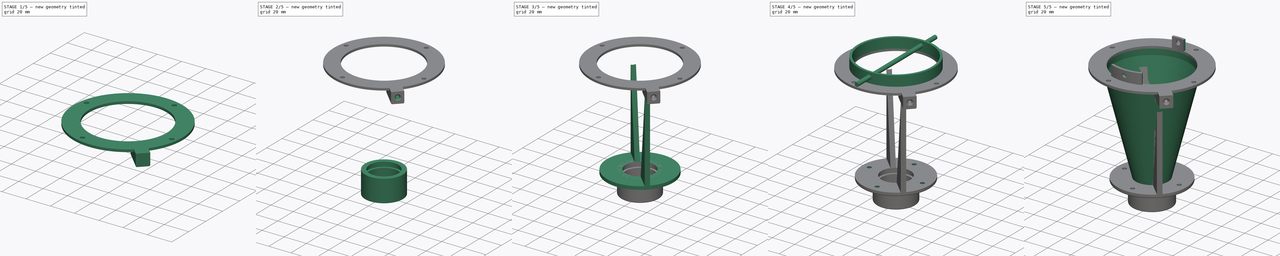
[diagram: build sequence overview — one tinted view per stage of 5, left to right]
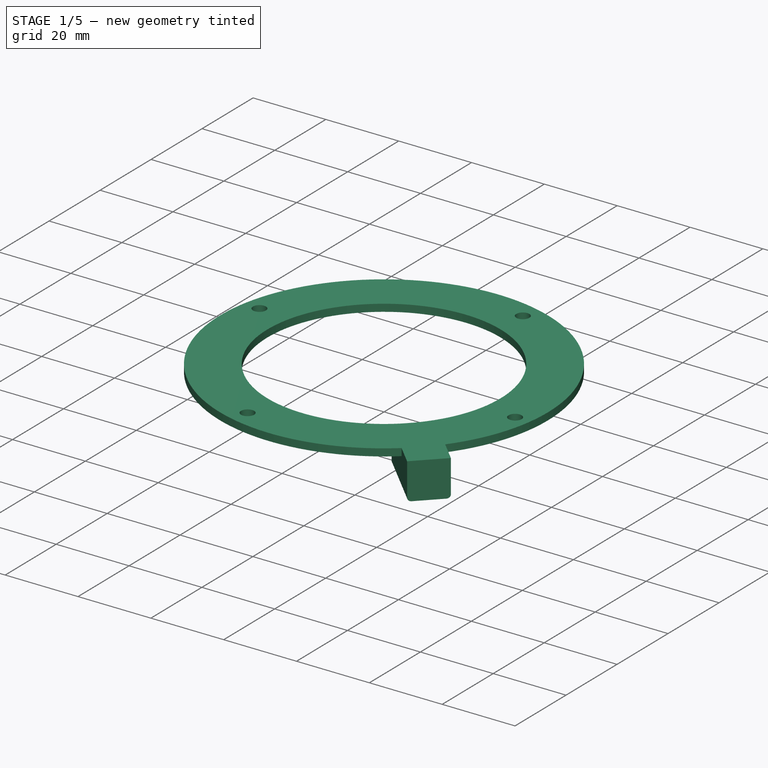
[diagram: stage 1 of 5 — iso view after this stage's code; geometry added in this stage tinted green]
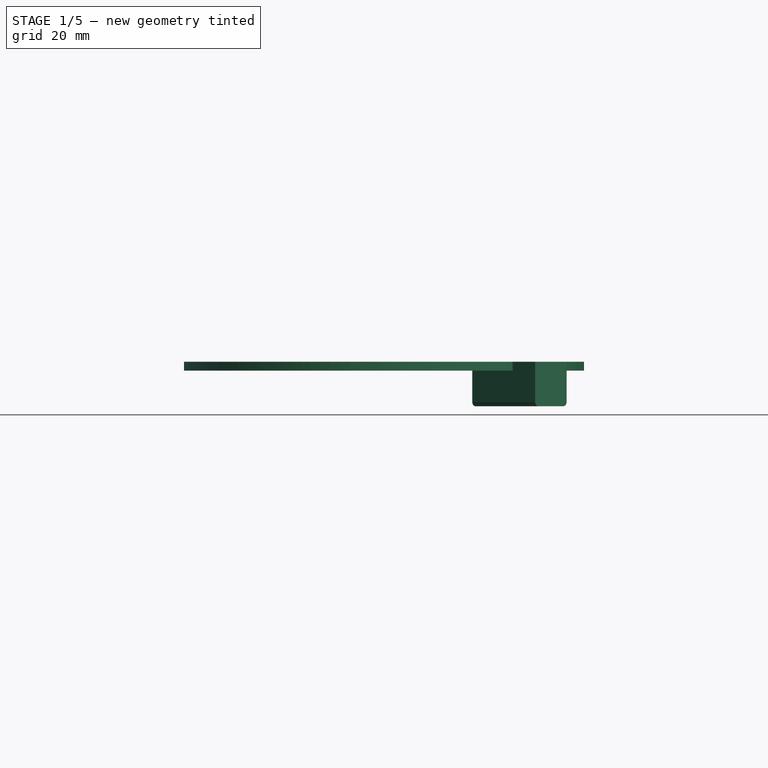
[diagram: stage 1 of 5 — front view after this stage's code; geometry added in this stage tinted green]
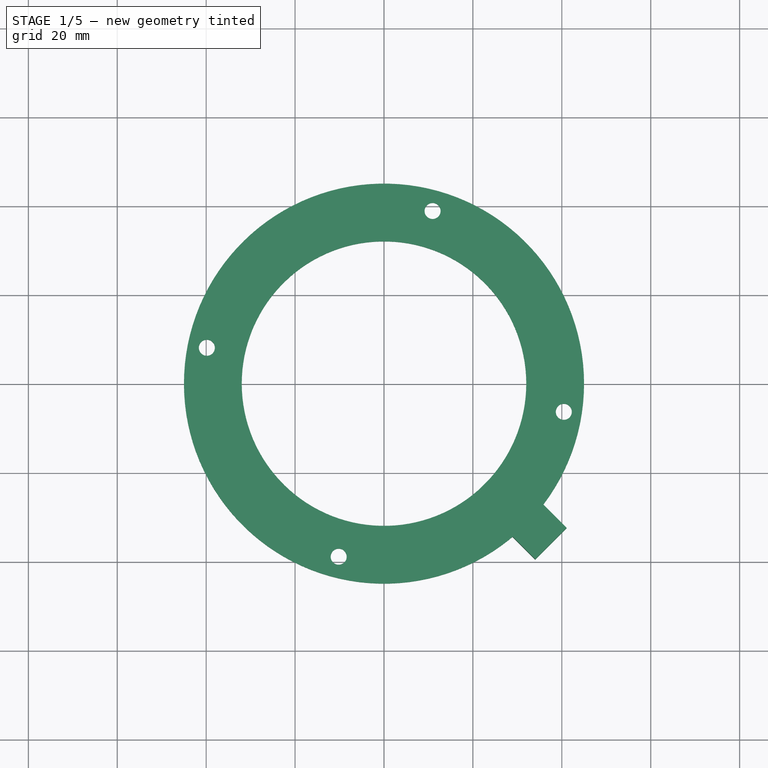
[diagram: stage 1 of 5 — top view after this stage's code; geometry added in this stage tinted green]
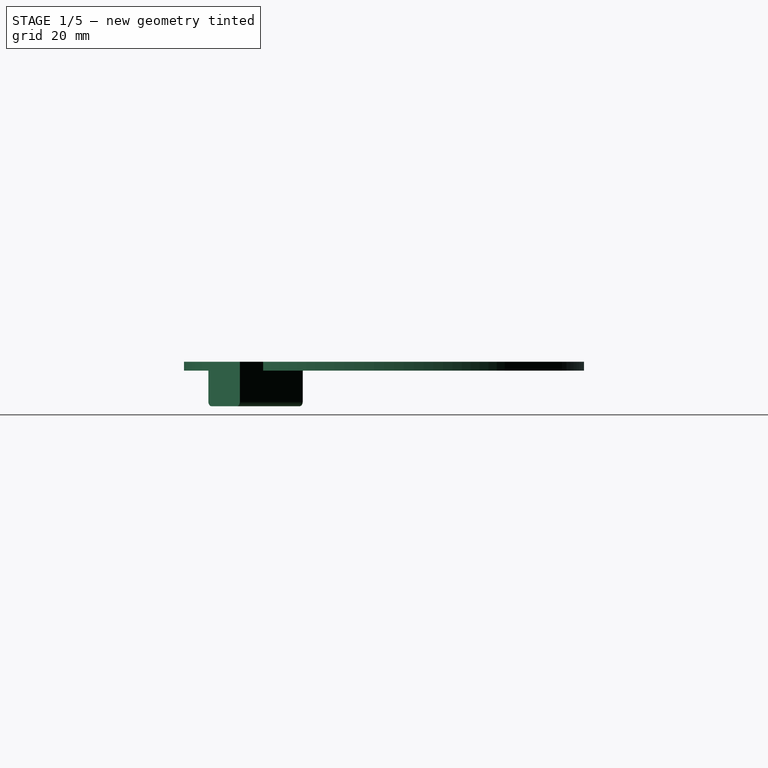
[diagram: stage 1 of 5 — right view after this stage's code; geometry added in this stage tinted green]
FCSTD DOCUMENT  (FreeCAD 0.16R6706 (Git))
Label: fan_funnel_2_hose_v2
License: All rights reserved
LicenseURL: http://en.wikipedia.org/wiki/All_rights_reserved
objects: Part::Cylinder×11, Part::Cut×9, Part::Fillet×5, Sketcher::SketchObject×4, PartDesign::Pocket×4, Part::Cone×2, Part::Box×2, PartDesign::Chamfer×1
note: 42 computed .brp shape members not serialized (recipe doc carries the construction recipe); baked Part::Feature solids carry a one-line shape summary decoded from their .brp

FEATURE [Part::Box] Box001  label="Kub001"
  Height = 10
  Length = 10
  Placement = pos=(34,-39.5,77) rot=(0,0,1;0.785398rad)
  Width = 20
FEATURE [Part::Fillet] Fillet003
  Base = -> Box001
  Edges = 1 edges r=1: [Edge8]
FEATURE [Part::Fillet] Fillet004
  Base = -> Fillet003
  Edges = 1 edges r=1: [Edge15]
FEATURE [Part::Cylinder] Cylinder009
  Angle = 360
  Height = 2
  Placement = pos=(0,0,85) rot=(0,0,1;0rad)
  Radius = 32
FEATURE [Part::Cylinder] Cylinder010
  Angle = 360
  Height = 2
  Placement = pos=(0,0,85) rot=(0,0,1;0rad)
  Radius = 45
FEATURE [Part::Cut] Cut008
  Base = -> Cylinder010
  Tool = -> Cylinder009
FEATURE [Sketcher::SketchObject] Sketch005
  Placement = pos=(0,0,87) rot=(0,0,1;0rad)
  Support = -> Cut008 [Face2]
  sketch-geometry (4):
    g0: Circle CenterX=10.9286 CenterY=38.84 CenterZ=0 NormalX=0 NormalY=0 NormalZ=1 Radius=1.8
    g1: Circle CenterX=40.4445 CenterY=-6.34323 CenterZ=0 NormalX=0 NormalY=0 NormalZ=1 Radius=1.8
    g2: Circle CenterX=-10.1943 CenterY=-38.9367 CenterZ=0 NormalX=0 NormalY=0 NormalZ=1 Radius=1.8
    g3: Circle CenterX=-39.8501 CenterY=8.06504 CenterZ=0 NormalX=0 NormalY=0 NormalZ=1 Radius=1.8
  constraints (4):
    c: Radius(g0) = 1.8
    c: Equal(g0,g1)
    c: Equal(g0,g2)
    c: Equal(g0,g3)
FEATURE [PartDesign::Pocket] Pocket003
  Length = 5
  Sketch = -> Sketch005
  Type = 0
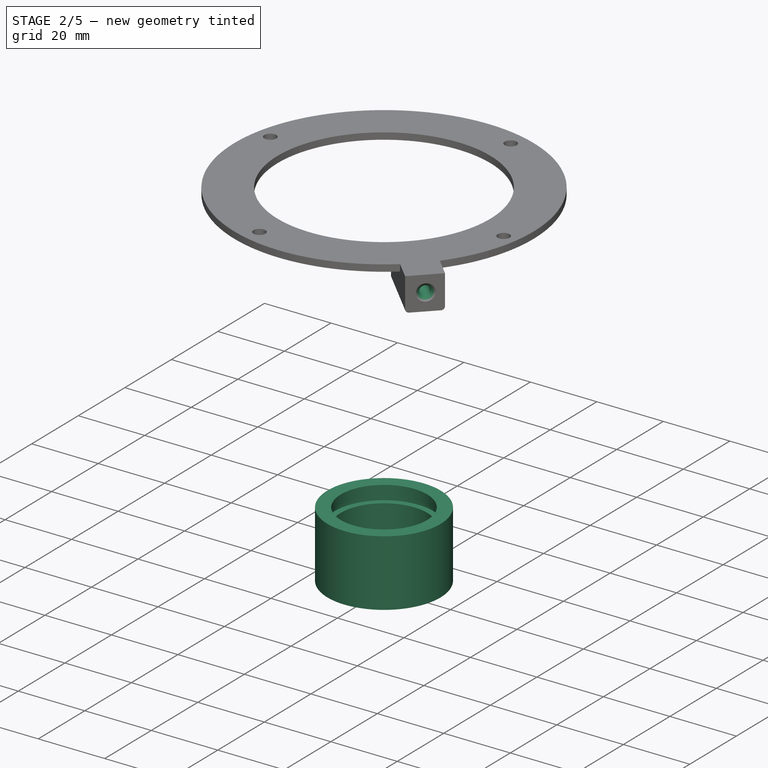
[diagram: stage 2 of 5 — iso view after this stage's code; geometry added in this stage tinted green]
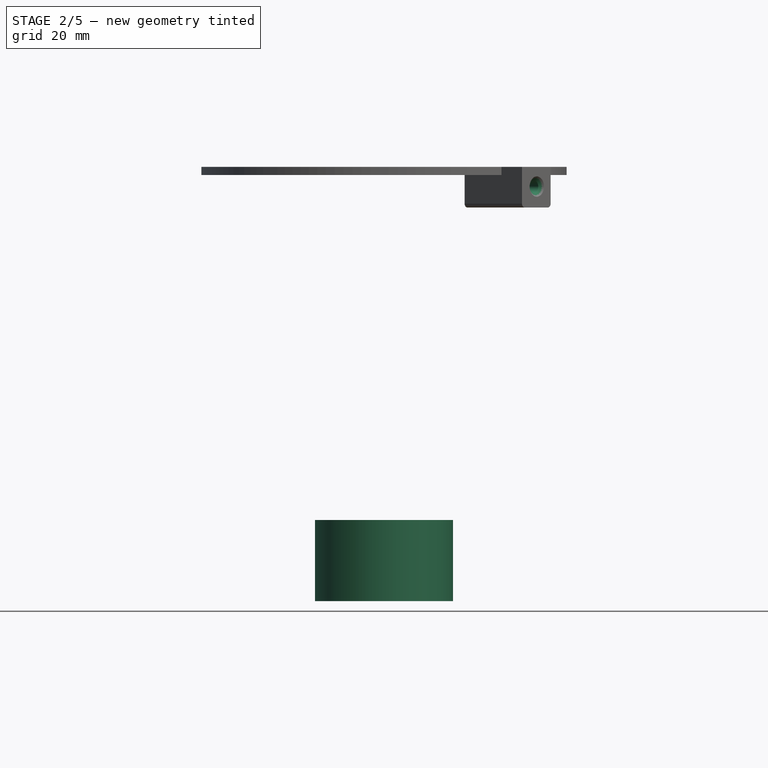
[diagram: stage 2 of 5 — front view after this stage's code; geometry added in this stage tinted green]
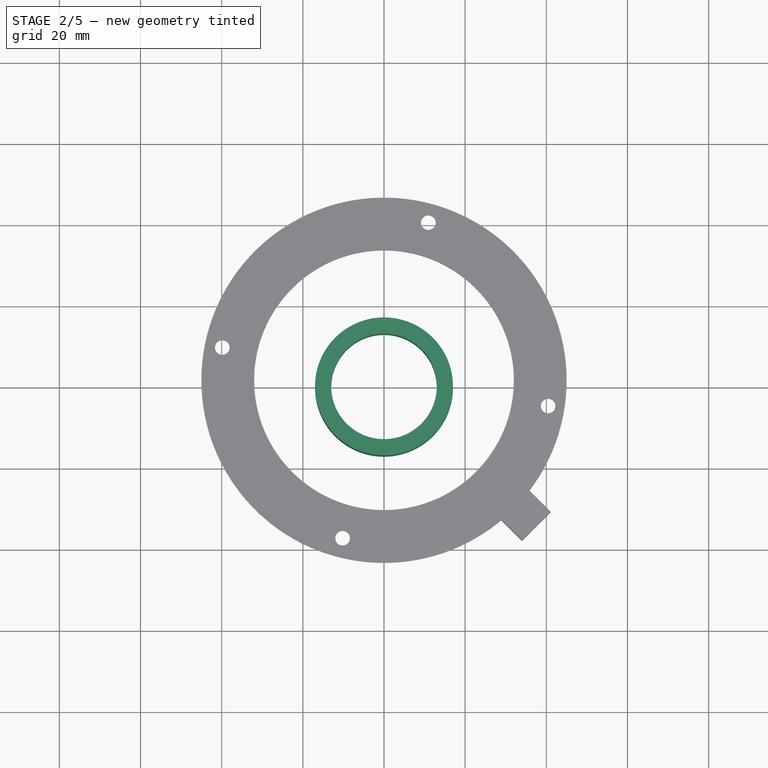
[diagram: stage 2 of 5 — top view after this stage's code; geometry added in this stage tinted green]
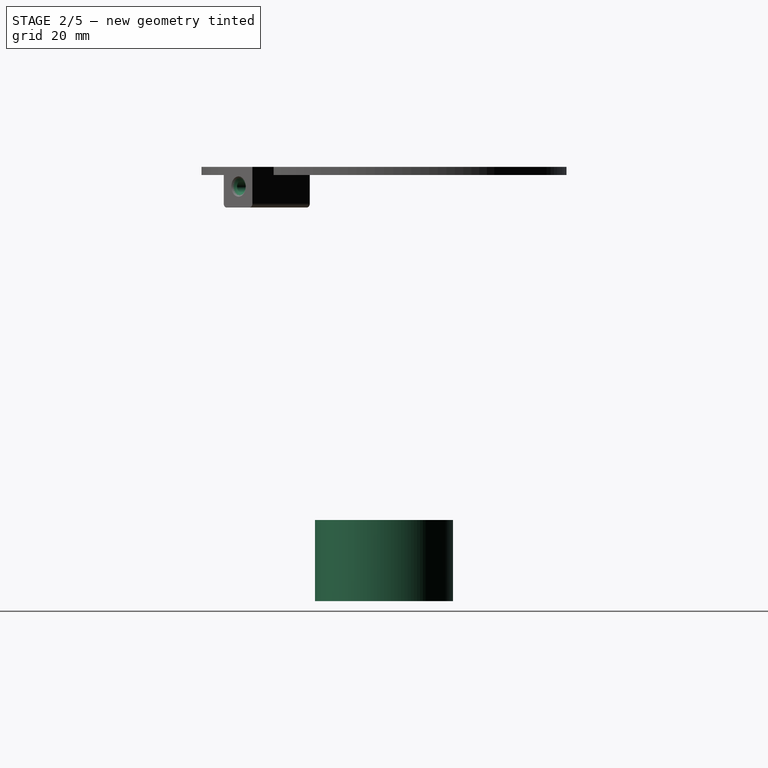
[diagram: stage 2 of 5 — right view after this stage's code; geometry added in this stage tinted green]
FEATURE [Part::Cylinder] Cylinder
  Angle = 360
  Height = 20
  Placement = pos=(0,0,-20) rot=(0,0,1;0rad)
  Radius = 17
FEATURE [Part::Cylinder] Cylinder001
  Angle = 360
  Height = 25
  Placement = pos=(0,0,-20) rot=(0,0,1;0rad)
  Radius = 13
FEATURE [Part::Cut] Cut001
  Base = -> Cylinder
  Tool = -> Cylinder001
FEATURE [Part::Cylinder] Cylinder007
  Angle = 360
  Height = 2
  Placement = pos=(0,0,-5) rot=(0,0,1;0rad)
  Radius = 14.8
FEATURE [Part::Cut] Cut005
  Base = -> Cut001
  Tool = -> Cylinder007
FEATURE [Sketcher::SketchObject] Sketch004
  Placement = pos=(36.75,-36.75,0) rot=(0.862856,0.357407,0.357407;1.71777rad)
  Support = -> Fillet004 [Face1]
  sketch-geometry (1):
    g0: Circle CenterX=1.27757 CenterY=82.1553 CenterZ=0 NormalX=0 NormalY=0 NormalZ=1 Radius=1.5
  constraints (1):
    c: Radius(g0) = 1.5
FEATURE [PartDesign::Pocket] Pocket002
  Length = 10
  Sketch = -> Sketch004
  Type = 0
FEATURE [PartDesign::Chamfer] Chamfer
  Base = -> Pocket002 [Edge7]
  Size = 1
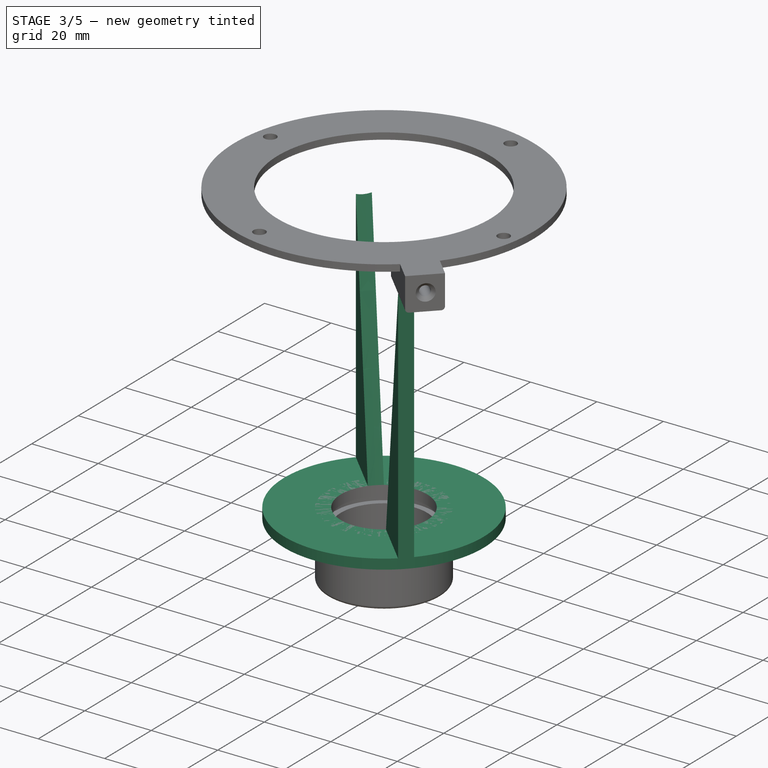
[diagram: stage 3 of 5 — iso view after this stage's code; geometry added in this stage tinted green]
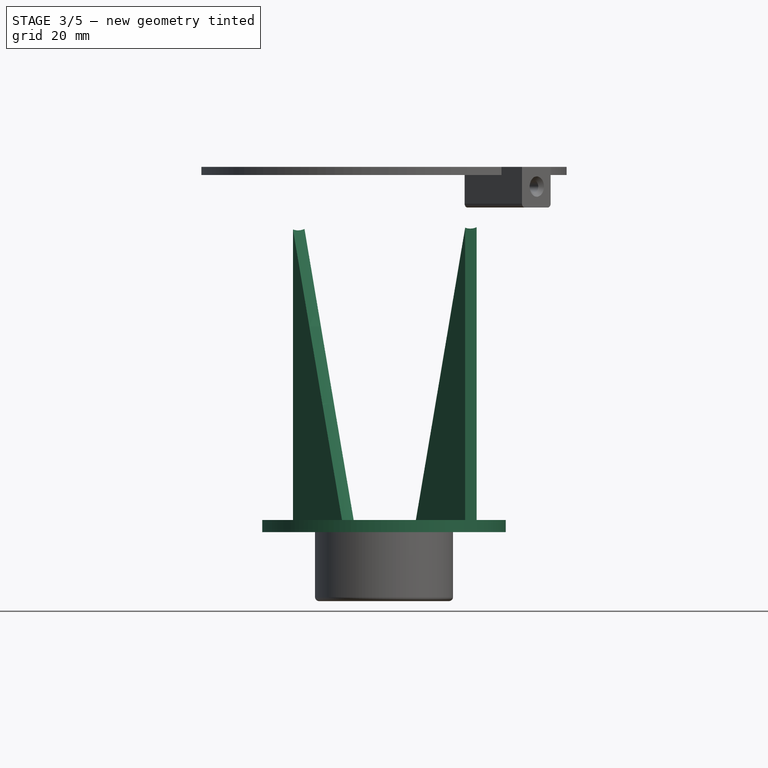
[diagram: stage 3 of 5 — front view after this stage's code; geometry added in this stage tinted green]
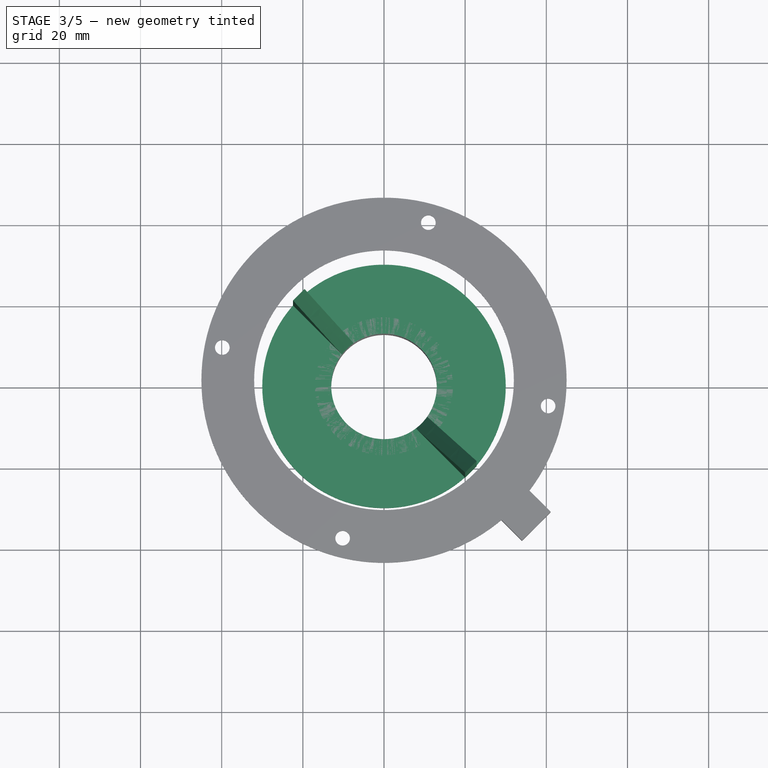
[diagram: stage 3 of 5 — top view after this stage's code; geometry added in this stage tinted green]
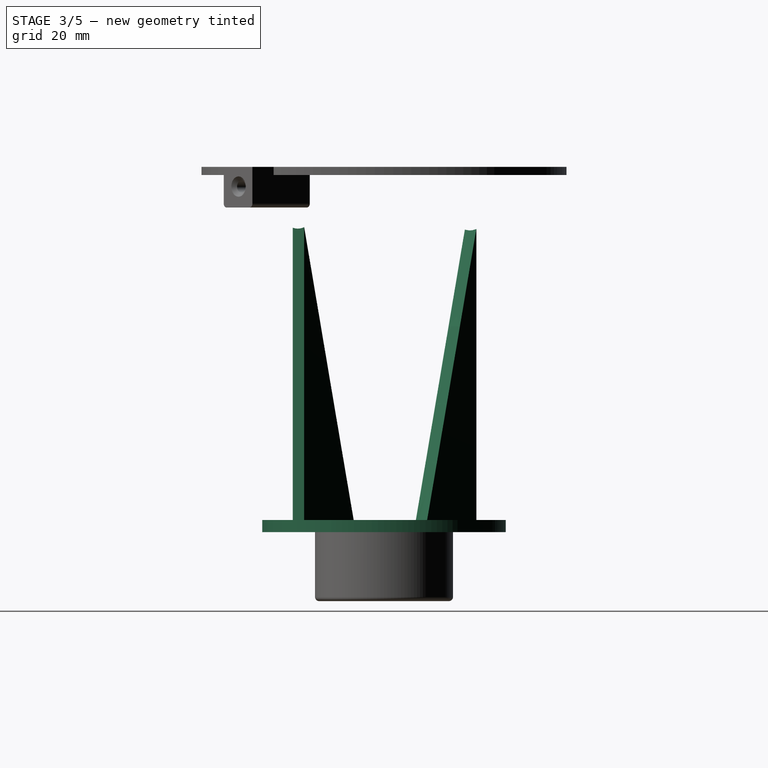
[diagram: stage 3 of 5 — right view after this stage's code; geometry added in this stage tinted green]
FEATURE [Part::Cone] Cone001
  Angle = 360
  Height = 80
  Radius1 = 13
  Radius2 = 32
FEATURE [Part::Cylinder] Cylinder002
  Angle = 360
  Height = 3
  Placement = pos=(0,0,-3) rot=(0,0,1;0rad)
  Radius = 30
FEATURE [Part::Cut] Cut002
  Base = -> Cylinder002
  Tool = -> Cylinder001
FEATURE [Part::Box] Box  label="Kub"
  Height = 74
  Length = 4
  Placement = pos=(20,-22.5,0) rot=(0,0,1;0.785398rad)
  Width = 60
FEATURE [Part::Cut] Cut007
  Base = -> Box
  Tool = -> Cone001
FEATURE [Part::Fillet] Fillet002
  Base = -> Cut005
  Edges = 1 edges r=1: [Edge3]
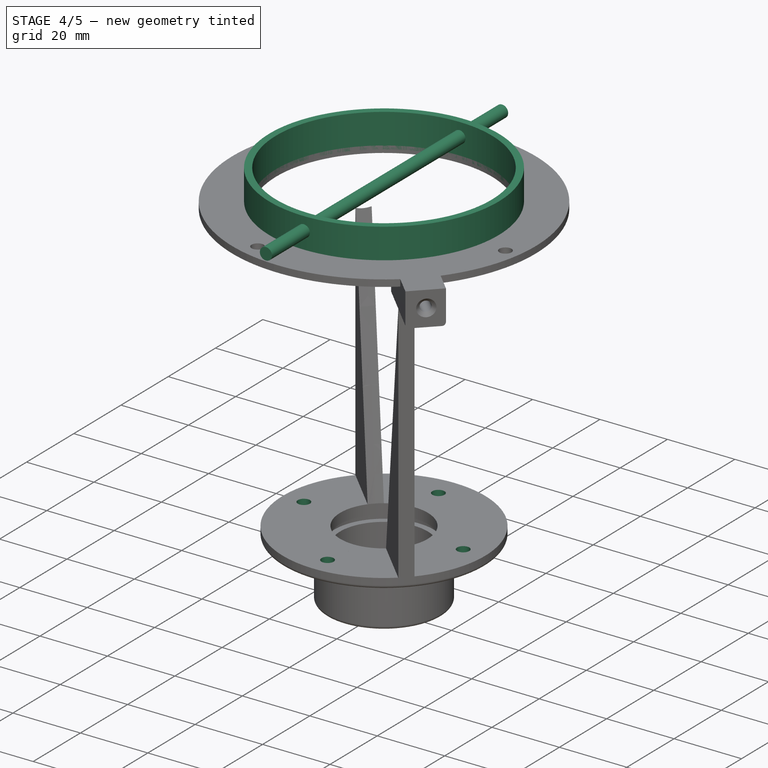
[diagram: stage 4 of 5 — iso view after this stage's code; geometry added in this stage tinted green]
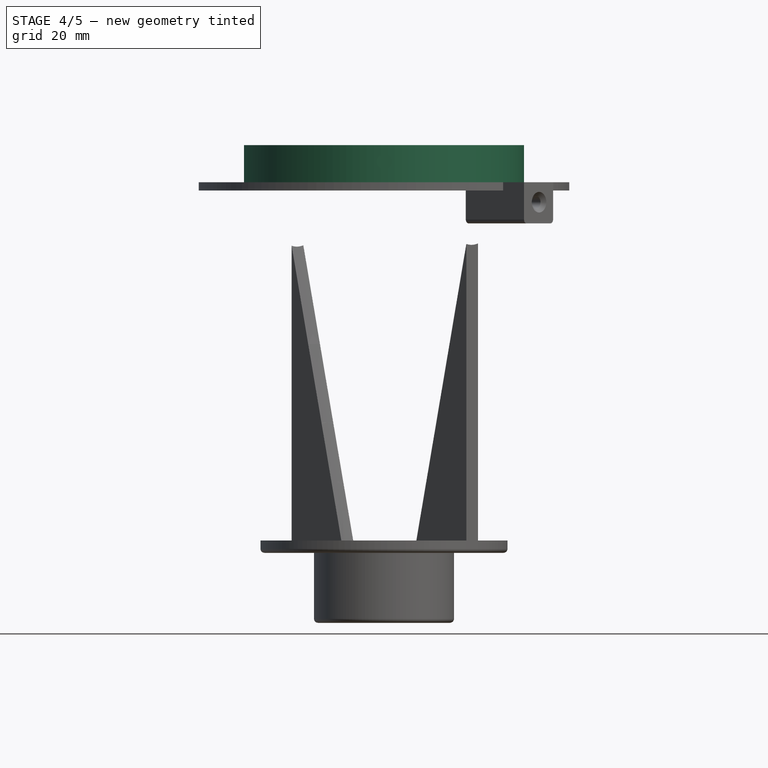
[diagram: stage 4 of 5 — front view after this stage's code; geometry added in this stage tinted green]
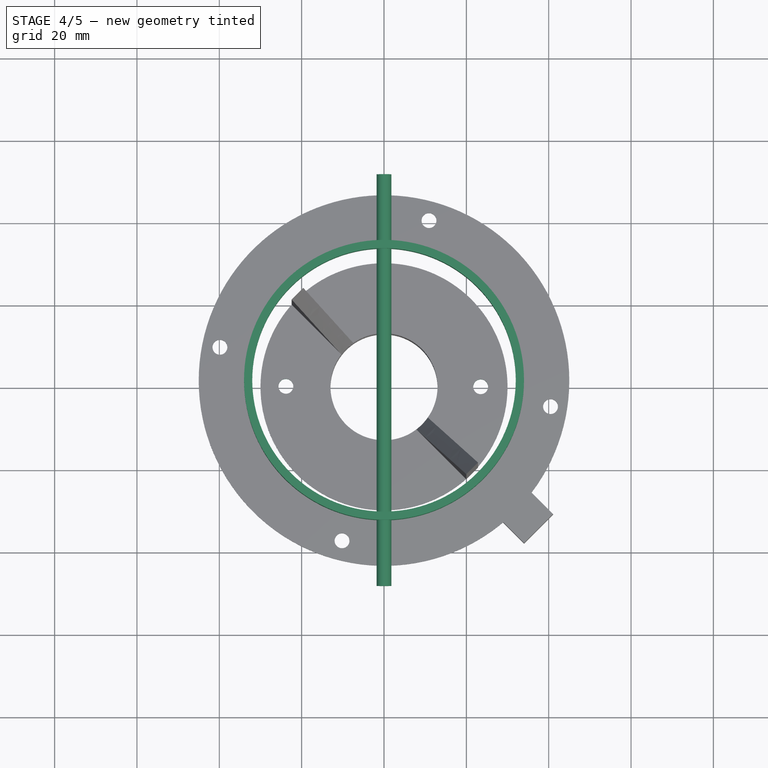
[diagram: stage 4 of 5 — top view after this stage's code; geometry added in this stage tinted green]
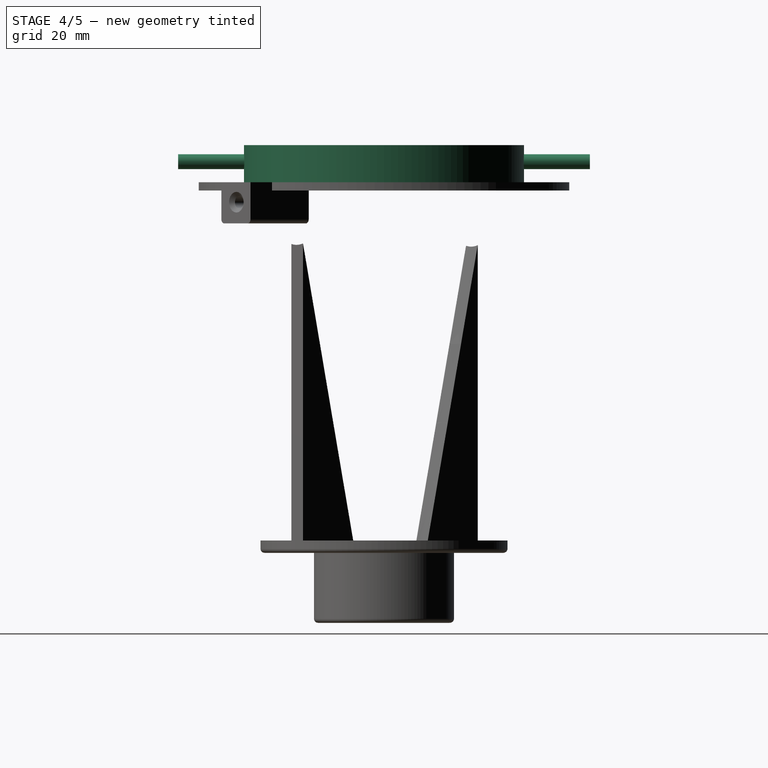
[diagram: stage 4 of 5 — right view after this stage's code; geometry added in this stage tinted green]
FEATURE [Sketcher::SketchObject] Sketch
  Placement = pos=(0,0,-3) rot=(1,0,0;3.14159rad)
  Support = -> Cut002 [Face3]
  sketch-geometry (4):
    g0: Circle CenterX=0.005002 CenterY=23.9113 CenterZ=0 NormalX=0 NormalY=0 NormalZ=1 Radius=1.8
    g1: Circle CenterX=23.4771 CenterY=0 CenterZ=0 NormalX=0 NormalY=0 NormalZ=1 Radius=1.8
    g2: Circle CenterX=0 CenterY=-23.0329 CenterZ=0 NormalX=0 NormalY=0 NormalZ=1 Radius=1.8
    g3: Circle CenterX=-23.8282 CenterY=-0.10249 CenterZ=0 NormalX=0 NormalY=0 NormalZ=1 Radius=1.8
  constraints (6):
    c: PointOnObject(g1,g-1)
    c: PointOnObject(g2,g-2)
    c: Radius(g3) = 1.8
    c: Equal(g3,g0)
    c: Equal(g3,g1)
    c: Equal(g3,g2)
FEATURE [PartDesign::Pocket] Pocket
  Length = 5
  Sketch = -> Sketch
  Type = 0
FEATURE [Part::Cylinder] Cylinder005
  Angle = 360
  Height = 10
  Placement = pos=(0,0,86) rot=(0,0,1;0rad)
  Radius = 34
FEATURE [Part::Cylinder] Cylinder006
  Angle = 360
  Height = 10
  Placement = pos=(0,0,86) rot=(0,0,1;0rad)
  Radius = 32
FEATURE [Part::Cut] Cut004
  Base = -> Cylinder005
  Tool = -> Cylinder006
FEATURE [Part::Cylinder] Cylinder008  label="Cut hole kone"
  Angle = 360
  Height = 100
  Placement = pos=(0,50,92) rot=(1,0,0;1.5708rad)
  Radius = 1.8
FEATURE [Part::Fillet] Fillet
  Base = -> Cut005
  Edges = 1 edges r=1: [Edge3]
FEATURE [Part::Fillet] Fillet001
  Base = -> Pocket
  Edges = 1 edges r=1: [Edge3]
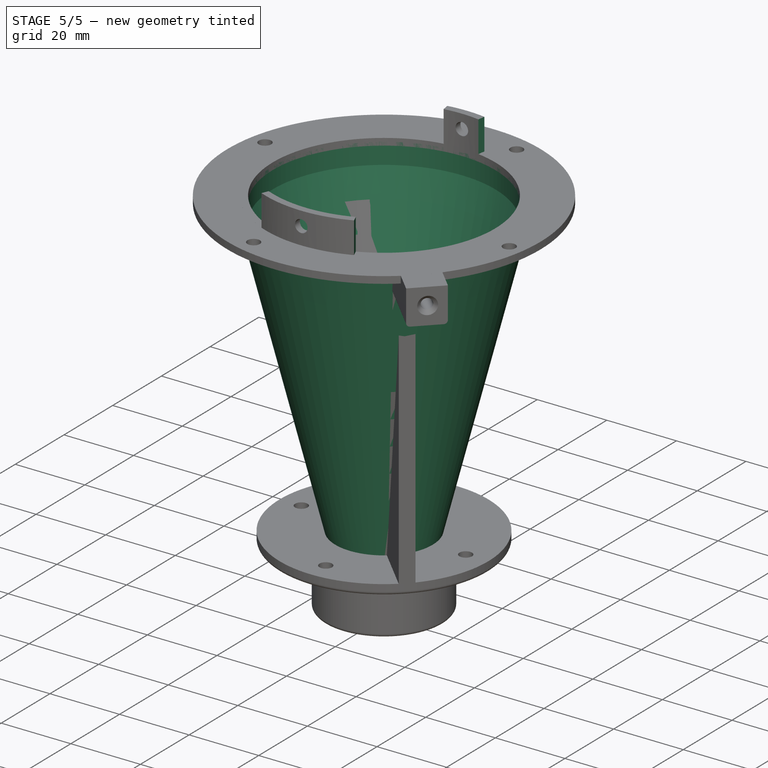
[diagram: stage 5 of 5 — iso view after this stage's code; geometry added in this stage tinted green]
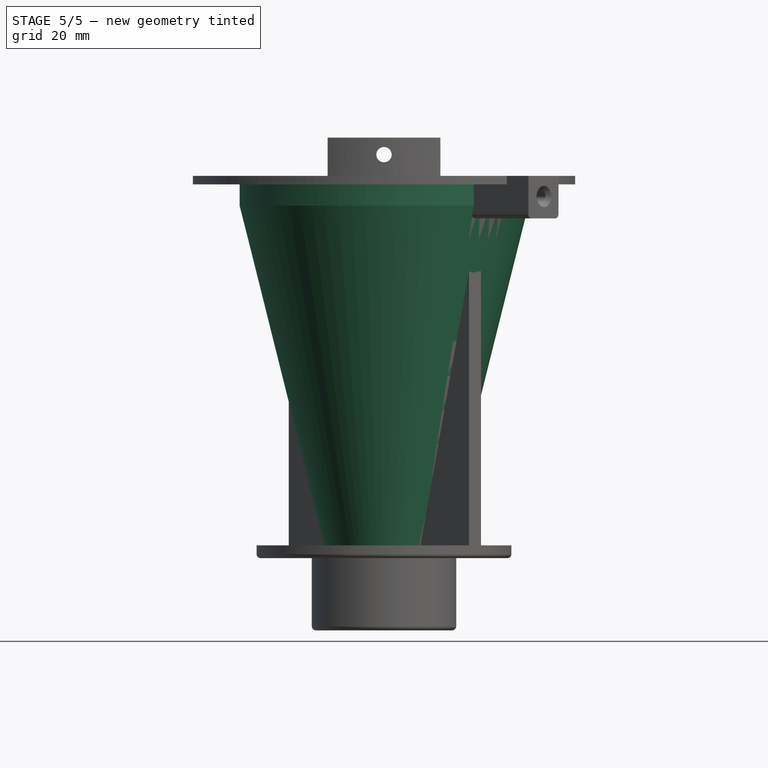
[diagram: stage 5 of 5 — front view after this stage's code; geometry added in this stage tinted green]
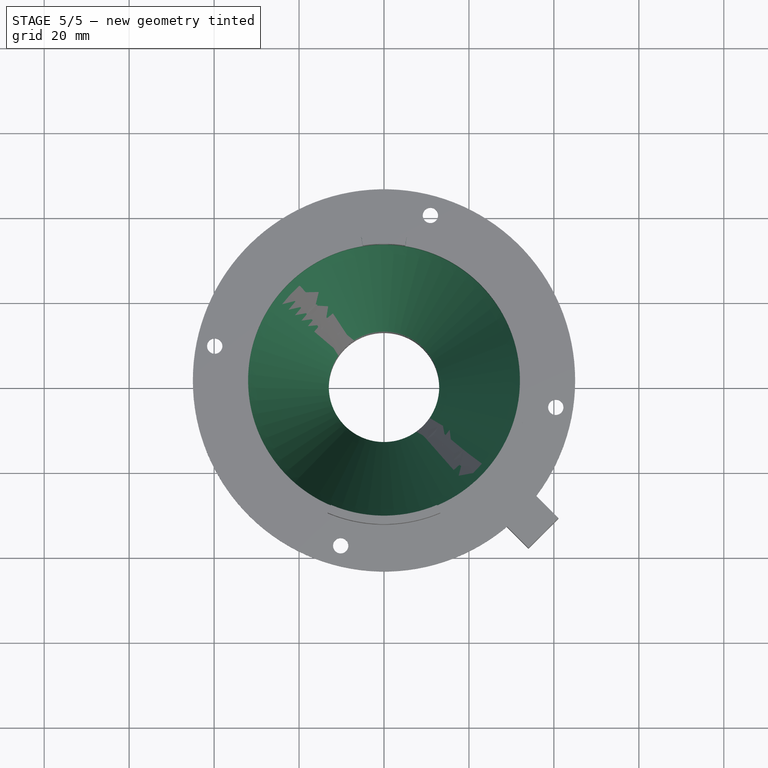
[diagram: stage 5 of 5 — top view after this stage's code; geometry added in this stage tinted green]
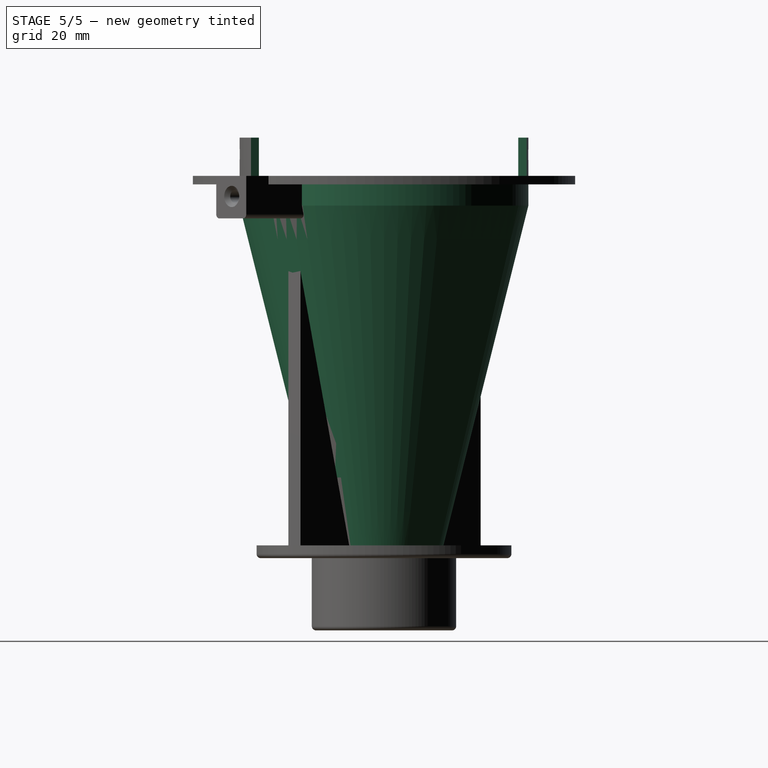
[diagram: stage 5 of 5 — right view after this stage's code; geometry added in this stage tinted green]
FEATURE [Part::Cone] Cone
  Angle = 360
  Height = 80
  Radius1 = 14
  Radius2 = 34
FEATURE [Part::Cut] Cut
  Base = -> Cone
  Tool = -> Cone001
FEATURE [Part::Cylinder] Cylinder003
  Angle = 360
  Height = 6
  Placement = pos=(0,0,80) rot=(0,0,1;0rad)
  Radius = 34
FEATURE [Part::Cylinder] Cylinder004
  Angle = 360
  Height = 6
  Placement = pos=(0,0,80) rot=(0,0,1;0rad)
  Radius = 32
FEATURE [Part::Cut] Cut003
  Base = -> Cylinder003
  Tool = -> Cylinder004
FEATURE [Sketcher::SketchObject] Sketch003
  Placement = pos=(0,0,96) rot=(0,0,1;0rad)
  Support = -> Cut004 [Face2]
  sketch-geometry (15):
    g0: LineSegment StartX=0 StartY=0 StartZ=0 EndX=-5.99058 EndY=37.823 EndZ=0
    g1: LineSegment StartX=0 StartY=0 StartZ=0 EndX=6.1393 EndY=38.762 EndZ=0
    g2: LineSegment StartX=0 StartY=0 StartZ=0 EndX=-14.9931 EndY=-35.3215 EndZ=0
    g3: LineSegment StartX=0 StartY=0 StartZ=0 EndX=14.1863 EndY=-33.4209 EndZ=0
    g4: LineSegment StartX=-5.99058 StartY=37.823 StartZ=0 EndX=-31.6509 EndY=27.8342 EndZ=0
    g5: LineSegment StartX=-31.6509 StartY=27.8342 StartZ=0 EndX=-41.2425 EndY=10.4552 EndZ=0
    g6: LineSegment StartX=-41.2425 StartY=10.4552 StartZ=0 EndX=-39.5331 EndY=-18.9845 EndZ=0
    g7: LineSegment StartX=-39.5331 StartY=-18.9845 StartZ=0 EndX=-26.5227 EndY=-31.6151 EndZ=0
    g8: LineSegment StartX=-26.5227 StartY=-31.6151 StartZ=0 EndX=-14.9931 EndY=-35.3215 EndZ=0
    g9: LineSegment StartX=6.1393 StartY=38.762 StartZ=0 EndX=24.1897 EndY=32.6775 EndZ=0
    g10: LineSegment StartX=24.1897 StartY=32.6775 StartZ=0 EndX=37.2001 EndY=15.8683 EndZ=0
    g11: LineSegment StartX=37.2001 StartY=15.8683 StartZ=0 EndX=39.2894 EndY=-13.6664 EndZ=0
    g12: LineSegment StartX=39.2894 StartY=-13.6664 StartZ=0 EndX=33.1166 EndY=-24.2077 EndZ=0
    g13: LineSegment StartX=33.1166 StartY=-24.2077 StartZ=0 EndX=21.3407 EndY=-34.0843 EndZ=0
    g14: LineSegment StartX=21.3407 StartY=-34.0843 StartZ=0 EndX=14.1863 EndY=-33.4209 EndZ=0
  constraints (21):
    c: Coincident(g0,g-1)
    c: Coincident(g1,g-1)
    c: Angle(g-2,g0) = 0.15708
    c: Angle(g1,g-2) = 0.15708
    c: Coincident(g2,g-1)
    c: Coincident(g3,g-1)
    c: Angle(g-2,g2) = 2.74017
    c: Angle(g3,g-2) = 2.74017
    c: Coincident(g0,g4)
    c: Coincident(g4,g5)
    c: Coincident(g5,g6)
    c: Coincident(g6,g7)
    c: Coincident(g7,g8)
    c: Coincident(g8,g2)
    c: Coincident(g1,g9)
    c: Coincident(g9,g10)
    c: Coincident(g10,g11)
    c: Coincident(g11,g12)
    c: Coincident(g12,g13)
    c: Coincident(g13,g14)
    c: Coincident(g14,g3)
FEATURE [PartDesign::Pocket] Pocket001
  Length = 9
  Sketch = -> Sketch003
  Type = 0
FEATURE [Part::Cut] Cut006
  Base = -> Pocket001
  Tool = -> Cylinder008
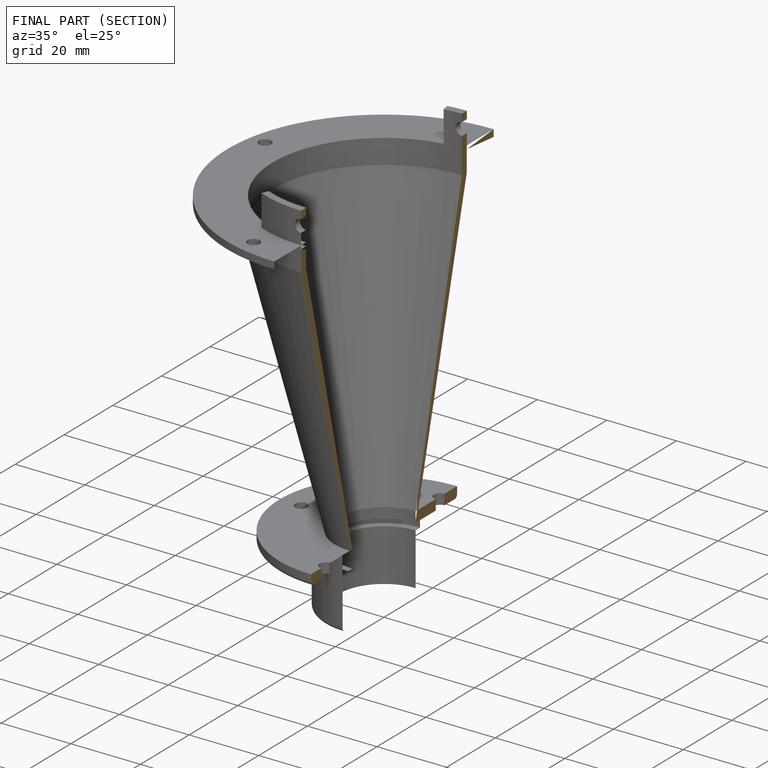
[diagram: finished part — half-section view (interior)]
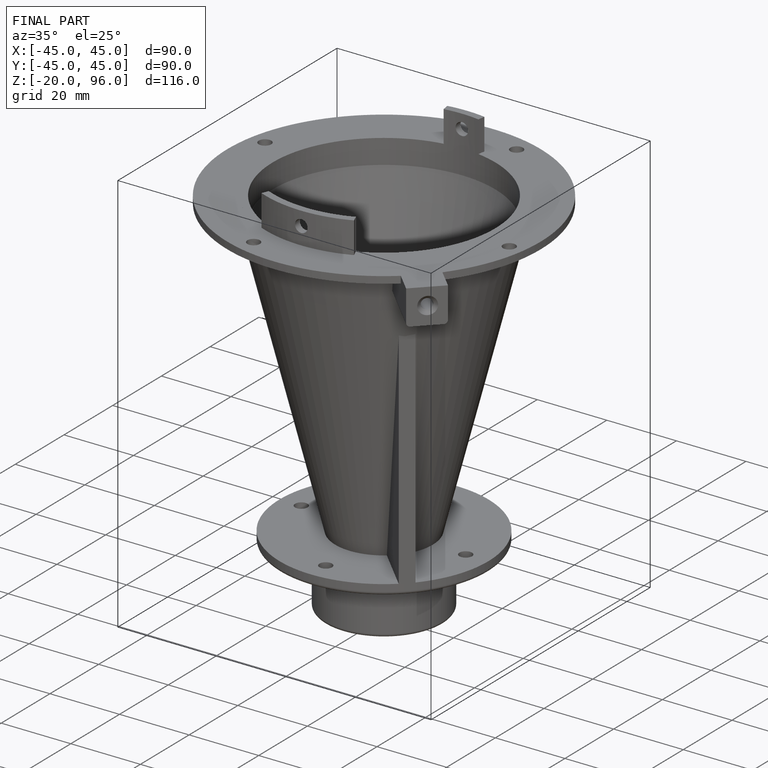
[diagram: finished part — iso view with bounding-box wireframe]
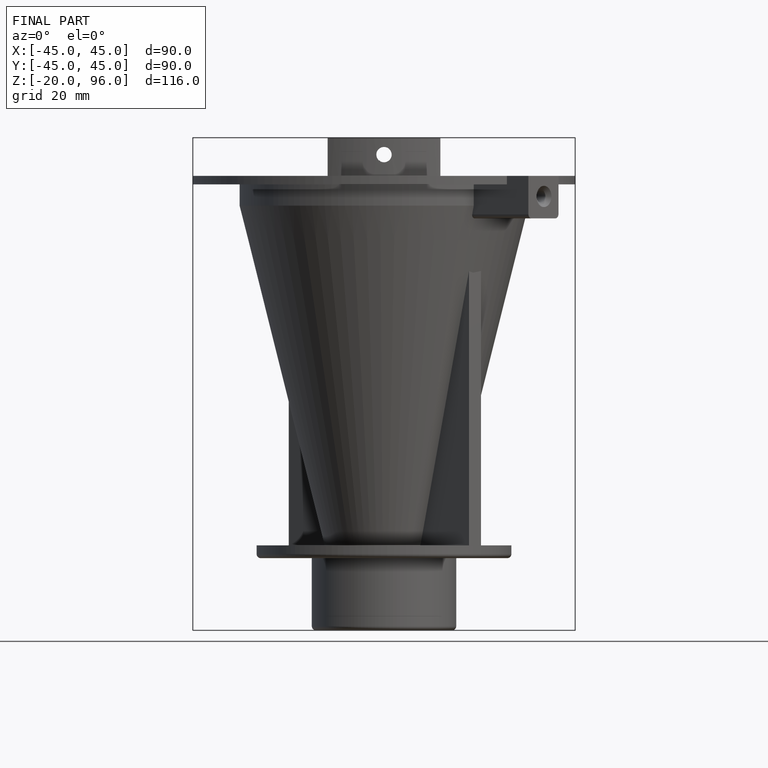
[diagram: finished part — front view with bounding-box wireframe]
